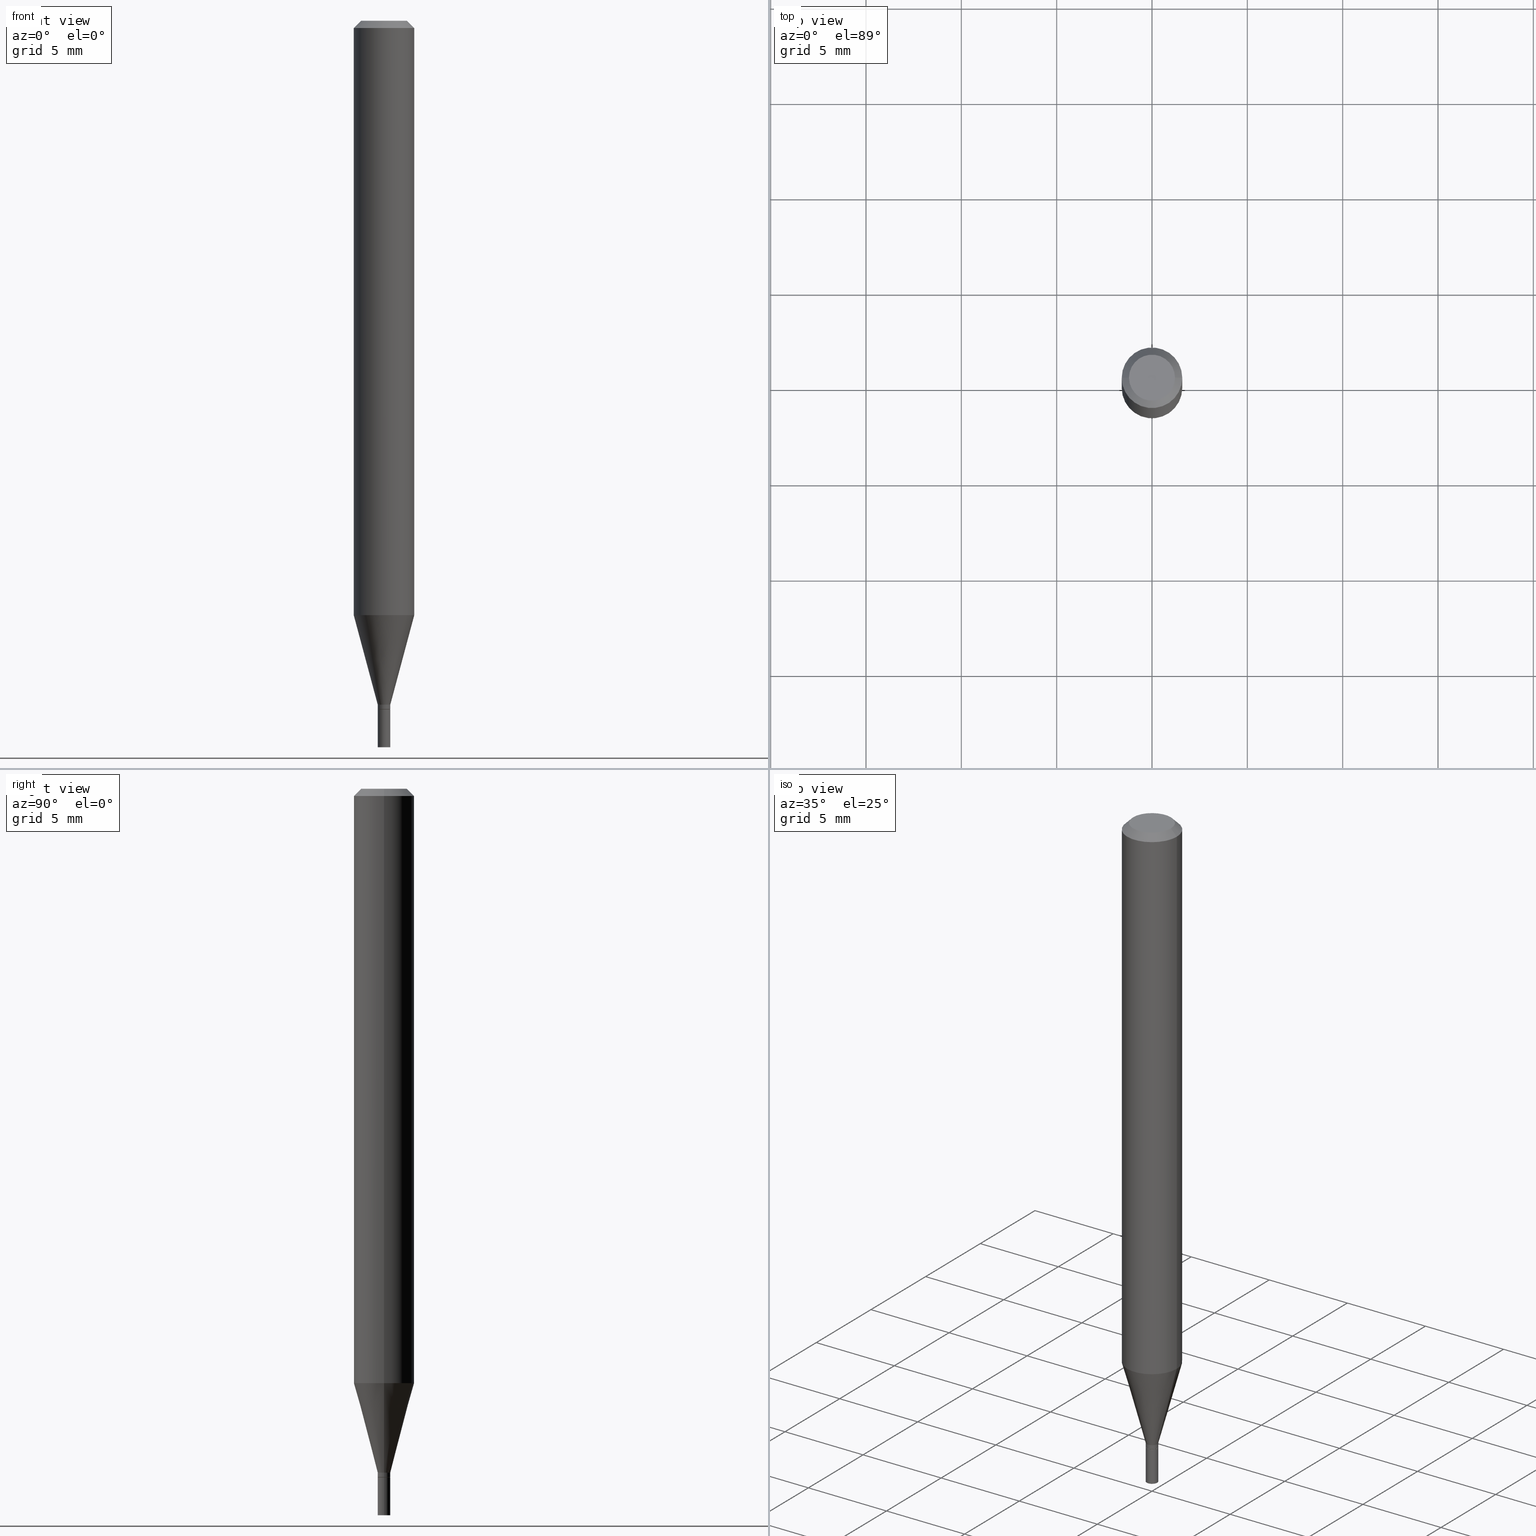
[diagram: canonical four-view strip — front | top / right | iso, engineering-drawing reading convention]
A machine part, canonical four-view strip (front | top / right | iso — engineering-drawing reading convention). The complete STEP part file that produces these views, byte-faithful:
ISO-10303-21;
HEADER;
FILE_DESCRIPTION (( 'STEP AP203' ),
    '1' );
FILE_NAME ('01177.STEP',
    '2024-03-19T23:41:36',
    ( '' ),
    ( '' ),
    'SwSTEP 2.0',
    'SolidWorks 2023',
    '' );
FILE_SCHEMA (( 'CONFIG_CONTROL_DESIGN' ));
ENDSEC;

DATA;
#1 = CARTESIAN_POINT ( 'NONE',  ( 0.06249999999999999306, -4.721402723164972337E-15, -1.227263485025340550 ) ) ;
#2 = DIRECTION ( 'NONE',  ( -2.445468806185136877E-29, 3.491481338843145188E-15, 1.000000000000000000 ) ) ;
#3 = EDGE_CURVE ( 'NONE', #13, #104, #34, .T. ) ;
#4 = DIRECTION ( 'NONE',  ( 1.000000000000000000, -6.982962677686258822E-15, 0.000000000000000000 ) ) ;
#5 = AXIS2_PLACEMENT_3D ( 'NONE', #384, #348, #433 ) ;
#6 = CC_DESIGN_APPROVAL ( #436, ( #299 ) ) ;
#7 = ADVANCED_FACE ( 'NONE', ( #202 ), #26, .T. ) ;
#8 = ORIENTED_EDGE ( 'NONE', *, *, #366, .T. ) ;
#9 = CARTESIAN_POINT ( 'NONE',  ( 3.477456642395264859E-29, -4.964886463834953365E-15, -1.421999999999999931 ) ) ;
#10 = PRODUCT_DEFINITION ( 'UNKNOWN', '', #151, #411 ) ;
#11 = ORIENTED_EDGE ( 'NONE', *, *, #21, .F. ) ;
#12 = CYLINDRICAL_SURFACE ( 'NONE', #443, 0.06250000000000000000 ) ;
#13 = VERTEX_POINT ( 'NONE', #215 ) ;
#14 = DIRECTION ( 'NONE',  ( 1.000000000000000000, -6.982962677686267499E-15, 4.876176775795935793E-29 ) ) ;
#15 = CIRCLE ( 'NONE', #42, 0.06250000000000000000 ) ;
#16 = LOCAL_TIME ( 19, 41, 36.00000000000000000, #318 ) ;
#17 = VECTOR ( 'NONE', #2, 39.37007874015748143 ) ;
#18 = ORIENTED_EDGE ( 'NONE', *, *, #444, .F. ) ;
#19 = EDGE_CURVE ( 'NONE', #13, #120, #229, .T. ) ;
#20 = CARTESIAN_POINT ( 'NONE',  ( -0.01249999999999999896, -4.876068621864941157E-15, -1.421999999999999931 ) ) ;
#21 = EDGE_CURVE ( 'NONE', #302, #167, #296, .T. ) ;
#22 = ORIENTED_EDGE ( 'NONE', *, *, #276, .F. ) ;
#23 = CC_DESIGN_PERSON_AND_ORGANIZATION_ASSIGNMENT ( #403, #162, ( #151 ) ) ;
#24 = ORIENTED_EDGE ( 'NONE', *, *, #307, .F. ) ;
#25 = ORIENTED_EDGE ( 'NONE', *, *, #67, .T. ) ;
#26 = CONICAL_SURFACE ( 'NONE', #196, 0.01299999999999992134, 0.2617993877991495189 ) ;
#27 = APPLICATION_PROTOCOL_DEFINITION ( 'international standard', 'config_control_design', 1994, #396 ) ;
#28 = DIRECTION ( 'NONE',  ( -1.000000000000000000, 6.982962677686266711E-15, 0.000000000000000000 ) ) ;
#29 = ORIENTED_EDGE ( 'NONE', *, *, #230, .F. ) ;
#30 = DIRECTION ( 'NONE',  ( -2.445468806185136597E-29, 3.491481338843145583E-15, 1.000000000000000000 ) ) ;
#31 = DIRECTION ( 'NONE',  ( -2.445468806185136597E-29, 3.491481338843145583E-15, 1.000000000000000000 ) ) ;
#32 = EDGE_LOOP ( 'NONE', ( #344, #376, #442, #400 ) ) ;
#33 = EDGE_CURVE ( 'NONE', #374, #90, #211, .T. ) ;
#34 = LINE ( 'NONE', #320, #176 ) ;
#35 = VECTOR ( 'NONE', #48, 39.37007874015748143 ) ;
#36 = CALENDAR_DATE ( 2024, 19, 3 ) ;
#37 = DIRECTION ( 'NONE',  ( -2.445468806185136597E-29, 3.491481338843145583E-15, 1.000000000000000000 ) ) ;
#38 = AXIS2_PLACEMENT_3D ( 'NONE', #232, #54, #368 ) ;
#39 = CARTESIAN_POINT ( 'NONE',  ( 0.01299999999999992134, -5.020750165256443057E-15, -1.412000000000000144 ) ) ;
#40 = CARTESIAN_POINT ( 'NONE',  ( 0.01299999999999992134, -5.053919237975453202E-15, -1.421500000000000208 ) ) ;
#41 = APPROVAL_ROLE ( '' ) ;
#42 = AXIS2_PLACEMENT_3D ( 'NONE', #169, #308, #450 ) ;
#43 = AXIS2_PLACEMENT_3D ( 'NONE', #256, #227, #333 ) ;
#44 = EDGE_CURVE ( 'NONE', #302, #346, #198, .T. ) ;
#45 = CARTESIAN_POINT ( 'NONE',  ( 0.000000000000000000, 0.000000000000000000, 0.000000000000000000 ) ) ;
#46 =( NAMED_UNIT ( * ) PLANE_ANGLE_UNIT ( ) SI_UNIT ( $, .RADIAN. ) );
#47 = DIRECTION ( 'NONE',  ( -0.7071067811865411334, 2.468850131082190402E-15, -0.7071067811865537900 ) ) ;
#48 = DIRECTION ( 'NONE',  ( -2.445468806185136877E-29, 3.491481338843145188E-15, 1.000000000000000000 ) ) ;
#49 = EDGE_LOOP ( 'NONE', ( #199, #121 ) ) ;
#50 = CARTESIAN_POINT ( 'NONE',  ( -0.01249999999999999896, -4.873419394690830745E-15, -1.421999999999999931 ) ) ;
#51 = DIRECTION ( 'NONE',  ( 1.000000000000000000, -6.982962677686258822E-15, 0.000000000000000000 ) ) ;
#52 = CYLINDRICAL_SURFACE ( 'NONE', #354, 0.06250000000000000000 ) ;
#53 = EDGE_CURVE ( 'NONE', #165, #60, #347, .T. ) ;
#54 = DIRECTION ( 'NONE',  ( -2.445468806185136597E-29, 3.491481338843145583E-15, 1.000000000000000000 ) ) ;
#55 = APPROVAL_STATUS ( 'not_yet_approved' ) ;
#56 = AXIS2_PLACEMENT_3D ( 'NONE', #9, #191, #324 ) ;
#57 = AXIS2_PLACEMENT_3D ( 'NONE', #413, #310, #51 ) ;
#58 = CLOSED_SHELL ( 'NONE', ( #221, #119, #129, #136, #7, #407, #148, #410, #345, #364, #92, #97 ) ) ;
#59 = AXIS2_PLACEMENT_3D ( 'NONE', #334, #265, #14 ) ;
#60 = VERTEX_POINT ( 'NONE', #1 ) ;
#61 = CARTESIAN_POINT ( 'NONE',  ( 3.476233907992172058E-29, -4.963140723165531861E-15, -1.421500000000000208 ) ) ;
#62 = PRODUCT_RELATED_PRODUCT_CATEGORY ( 'detail', '', ( #78 ) ) ;
#63 = ORIENTED_EDGE ( 'NONE', *, *, #377, .F. ) ;
#64 = DIRECTION ( 'NONE',  ( -2.445468806185136597E-29, 3.491481338843145583E-15, 1.000000000000000000 ) ) ;
#65 = EDGE_LOOP ( 'NONE', ( #71, #207, #89, #63 ) ) ;
#66 = CARTESIAN_POINT ( 'NONE',  ( 0.000000000000000000, 0.000000000000000000, 0.000000000000000000 ) ) ;
#67 = EDGE_CURVE ( 'NONE', #120, #68, #322, .T. ) ;
#68 = VERTEX_POINT ( 'NONE', #456 ) ;
#69 = LINE ( 'NONE', #455, #173 ) ;
#70 = DIRECTION ( 'NONE',  ( -1.000000000000000000, 6.982962677686265922E-15, -4.876176775795935793E-29 ) ) ;
#71 = ORIENTED_EDGE ( 'NONE', *, *, #426, .F. ) ;
#72 = VERTEX_POINT ( 'NONE', #39 ) ;
#73 = PERSON_AND_ORGANIZATION_ROLE ( 'creator' ) ;
#74 = CYLINDRICAL_SURFACE ( 'NONE', #83, 0.01299999999999999767 ) ;
#75 = COORDINATED_UNIVERSAL_TIME_OFFSET ( 5, 0, .BEHIND. ) ;
#76 = ADVANCED_FACE ( 'NONE', ( #284 ), #106, .F. ) ;
#77 = FACE_OUTER_BOUND ( 'NONE', #237, .T. ) ;
#78 = PRODUCT ( '01177', '01177', '', ( #427 ) ) ;
#79 = FACE_OUTER_BOUND ( 'NONE', #418, .T. ) ;
#80 = CC_DESIGN_PERSON_AND_ORGANIZATION_ASSIGNMENT ( #350, #459, ( #299 ) ) ;
#81 = AXIS2_PLACEMENT_3D ( 'NONE', #164, #126, #303 ) ;
#82 = DIRECTION ( 'NONE',  ( 0.2588190451025207950, 1.565188264969625912E-15, 0.9659258262890682012 ) ) ;
#83 = AXIS2_PLACEMENT_3D ( 'NONE', #205, #37, #103 ) ;
#84 = DIRECTION ( 'NONE',  ( 1.000000000000000000, 0.000000000000000000, 0.000000000000000000 ) ) ;
#85 = AXIS2_PLACEMENT_3D ( 'NONE', #432, #363, #257 ) ;
#86 = DIRECTION ( 'NONE',  ( -2.445468806185136597E-29, 3.491481338843145583E-15, 1.000000000000000000 ) ) ;
#87 = CARTESIAN_POINT ( 'NONE',  ( 3.477456642395264859E-29, -4.964886463834953365E-15, -1.421999999999999931 ) ) ;
#88 = CARTESIAN_POINT ( 'NONE',  ( -6.641529175093299695E-45, 9.482343474417248123E-31, 2.715851111367844914E-16 ) ) ;
#89 = ORIENTED_EDGE ( 'NONE', *, *, #21, .T. ) ;
#90 = VERTEX_POINT ( 'NONE', #40 ) ;
#91 = DIRECTION ( 'NONE',  ( -2.445468806185136877E-29, 3.491481338843145188E-15, 1.000000000000000000 ) ) ;
#92 = ADVANCED_FACE ( 'NONE', ( #183 ), #122, .T. ) ;
#93 = VECTOR ( 'NONE', #82, 39.37007874015748854 ) ;
#94 = AXIS2_PLACEMENT_3D ( 'NONE', #178, #225, #460 ) ;
#95 = ORIENTED_EDGE ( 'NONE', *, *, #53, .T. ) ;
#96 = ORIENTED_EDGE ( 'NONE', *, *, #226, .F. ) ;
#97 = ADVANCED_FACE ( 'NONE', ( #79 ), #218, .T. ) ;
#98 = FACE_OUTER_BOUND ( 'NONE', #272, .T. ) ;
#99 = ORIENTED_EDGE ( 'NONE', *, *, #110, .T. ) ;
#100 = DIRECTION ( 'NONE',  ( -2.445468806185136877E-29, 3.491481338843145188E-15, 1.000000000000000000 ) ) ;
#101 = FACE_OUTER_BOUND ( 'NONE', #233, .T. ) ;
#102 = ORIENTED_EDGE ( 'NONE', *, *, #155, .T. ) ;
#103 = DIRECTION ( 'NONE',  ( 1.000000000000000000, -6.982962677686267499E-15, 4.876176775795935793E-29 ) ) ;
#104 = VERTEX_POINT ( 'NONE', #141 ) ;
#105 = CALENDAR_DATE ( 2024, 19, 3 ) ;
#106 = PLANE ( 'NONE',  #234 ) ;
#107 = LENGTH_MEASURE_WITH_UNIT ( LENGTH_MEASURE( 0.02539999999999999897 ), #448 );
#108 = FACE_OUTER_BOUND ( 'NONE', #453, .T. ) ;
#109 = DIRECTION ( 'NONE',  ( 1.000000000000000000, -6.982962677686266711E-15, 4.876176775795935793E-29 ) ) ;
#110 = EDGE_CURVE ( 'NONE', #311, #72, #404, .T. ) ;
#111 = AXIS2_PLACEMENT_3D ( 'NONE', #408, #31, #171 ) ;
#112 = DIRECTION ( 'NONE',  ( -2.445468806185136597E-29, 3.491481338843145583E-15, 1.000000000000000000 ) ) ;
#113 = CARTESIAN_POINT ( 'NONE',  ( 9.077851480995622346E-17, 0.01299999999999503462, -1.421999999999999931 ) ) ;
#114 = LINE ( 'NONE', #398, #93 ) ;
#115 = APPLICATION_CONTEXT ( 'configuration controlled 3d designs of mechanical parts and assemblies' ) ;
#116 = ORIENTED_EDGE ( 'NONE', *, *, #285, .F. ) ;
#117 = APPROVAL_PERSON_ORGANIZATION ( #401, #464, #441 ) ;
#118 = LINE ( 'NONE', #266, #313 ) ;
#119 = ADVANCED_FACE ( 'NONE', ( #194 ), #250, .T. ) ;
#120 = VERTEX_POINT ( 'NONE', #312 ) ;
#121 = ORIENTED_EDGE ( 'NONE', *, *, #377, .T. ) ;
#122 = CONICAL_SURFACE ( 'NONE', #149, 0.01249999999999999896, 0.7853981633974718157 ) ;
#123 = CARTESIAN_POINT ( 'NONE',  ( 3.453001954333413314E-29, -4.929971650446521716E-15, -1.412000000000000144 ) ) ;
#124 = CYLINDRICAL_SURFACE ( 'NONE', #59, 0.01299999999999999767 ) ;
#125 = ORIENTED_EDGE ( 'NONE', *, *, #268, .T. ) ;
#126 = DIRECTION ( 'NONE',  ( -2.445468806185136597E-29, 3.491481338843145583E-15, 1.000000000000000000 ) ) ;
#127 = ORIENTED_EDGE ( 'NONE', *, *, #332, .T. ) ;
#128 = FACE_OUTER_BOUND ( 'NONE', #264, .T. ) ;
#129 = ADVANCED_FACE ( 'NONE', ( #282 ), #431, .T. ) ;
#130 = AXIS2_PLACEMENT_3D ( 'NONE', #290, #187, #327 ) ;
#131 = ORGANIZATION ( 'UNSPECIFIED', 'UNSPECIFIED', '' ) ;
#132 = DIRECTION ( 'NONE',  ( -0.7071067811865642261, 7.493145998870414114E-15, 0.7071067811865309194 ) ) ;
#133 = ORIENTED_EDGE ( 'NONE', *, *, #268, .F. ) ;
#134 = AXIS2_PLACEMENT_3D ( 'NONE', #425, #434, #4 ) ;
#135 = PERSON_AND_ORGANIZATION ( #449, #131 ) ;
#136 = ADVANCED_FACE ( 'NONE', ( #108 ), #12, .T. ) ;
#137 = EDGE_LOOP ( 'NONE', ( #96, #99, #380, #305 ) ) ;
#138 = CARTESIAN_POINT ( 'NONE',  ( 0.01249999999999999896, -5.052173497306032488E-15, -1.421999999999999931 ) ) ;
#139 = PERSON_AND_ORGANIZATION ( #449, #131 ) ;
#140 = DIRECTION ( 'NONE',  ( 1.000000000000000000, -6.982962677686295110E-15, 0.000000000000000000 ) ) ;
#141 = CARTESIAN_POINT ( 'NONE',  ( 0.06250000000000000000, -4.888073874380388472E-16, -0.01499999999999999944 ) ) ;
#142 = DIRECTION ( 'NONE',  ( -2.438088387897960049E-29, 3.491481338843145188E-15, 1.000000000000000000 ) ) ;
#143 = CC_DESIGN_PERSON_AND_ORGANIZATION_ASSIGNMENT ( #428, #340, ( #78 ) ) ;
#144 = CARTESIAN_POINT ( 'NONE',  ( 3.477456642395264859E-29, -4.964886463834953365E-15, -1.421999999999999931 ) ) ;
#145 = DIRECTION ( 'NONE',  ( 1.000000000000000000, -6.982962677686266711E-15, 4.876176775795935232E-29 ) ) ;
#146 = DIRECTION ( 'NONE',  ( 1.000000000000000000, -6.982962677686266711E-15, 4.876176775795935793E-29 ) ) ;
#147 = DIRECTION ( 'NONE',  ( 0.000000000000000000, 0.000000000000000000, 1.000000000000000000 ) ) ;
#148 = ADVANCED_FACE ( 'NONE', ( #77 ), #52, .T. ) ;
#149 = AXIS2_PLACEMENT_3D ( 'NONE', #144, #288, #390 ) ;
#150 = DIRECTION ( 'NONE',  ( -1.000000000000000000, 6.982962677686266711E-15, 0.000000000000000000 ) ) ;
#151 = PRODUCT_DEFINITION_FORMATION_WITH_SPECIFIED_SOURCE ( 'ANY', '', #78, .NOT_KNOWN. ) ;
#152 = LINE ( 'NONE', #389, #438 ) ;
#153 = CARTESIAN_POINT ( 'NONE',  ( 0.000000000000000000, 0.000000000000000000, 0.000000000000000000 ) ) ;
#154 = ORIENTED_EDGE ( 'NONE', *, *, #33, .F. ) ;
#155 = EDGE_CURVE ( 'NONE', #447, #90, #152, .T. ) ;
#156 = ORIENTED_EDGE ( 'NONE', *, *, #444, .T. ) ;
#157 = DIRECTION ( 'NONE',  ( 1.000000000000000000, -6.982962677686265922E-15, 4.876176775795935793E-29 ) ) ;
#158 = AXIS2_PLACEMENT_3D ( 'NONE', #343, #341, #157 ) ;
#159 = EDGE_CURVE ( 'NONE', #188, #447, #357, .T. ) ;
#160 = LOCAL_TIME ( 19, 41, 36.00000000000000000, #184 ) ;
#161 = VECTOR ( 'NONE', #47, 39.37007874015748854 ) ;
#162 = PERSON_AND_ORGANIZATION_ROLE ( 'design_supplier' ) ;
#163 = EDGE_LOOP ( 'NONE', ( #29, #190 ) ) ;
#164 = CARTESIAN_POINT ( 'NONE',  ( 3.477456642395264859E-29, -4.964886463834953365E-15, -1.421999999999999931 ) ) ;
#165 = VERTEX_POINT ( 'NONE', #429 ) ;
#166 = CLOSED_SHELL ( 'NONE', ( #452, #76, #361, #424 ) ) ;
#167 = VERTEX_POINT ( 'NONE', #360 ) ;
#168 = COORDINATED_UNIVERSAL_TIME_OFFSET ( 5, 0, .BEHIND. ) ;
#169 = CARTESIAN_POINT ( 'NONE',  ( 3.668203209277705088E-31, -5.237222008264718399E-17, -0.01499999999999999944 ) ) ;
#170 = ORIENTED_EDGE ( 'NONE', *, *, #19, .T. ) ;
#171 = DIRECTION ( 'NONE',  ( 1.000000000000000000, -6.982962677686299843E-15, 0.000000000000000000 ) ) ;
#172 = ORIENTED_EDGE ( 'NONE', *, *, #379, .T. ) ;
#173 = VECTOR ( 'NONE', #100, 39.37007874015748143 ) ;
#174 = CARTESIAN_POINT ( 'NONE',  ( -0.01299999999999999767, -5.008683680401023059E-15, -1.500000000000000222 ) ) ;
#175 = ORIENTED_EDGE ( 'NONE', *, *, #332, .F. ) ;
#176 = VECTOR ( 'NONE', #445, 39.37007874015748854 ) ;
#177 = CIRCLE ( 'NONE', #300, 0.04749999999999999362 ) ;
#178 = CARTESIAN_POINT ( 'NONE',  ( 3.001234569599529890E-29, -4.284967555809580668E-15, -1.227263485025340550 ) ) ;
#179 = DATE_AND_TIME ( #289, #160 ) ;
#180 = DATE_TIME_ROLE ( 'creation_date' ) ;
#181 = CARTESIAN_POINT ( 'NONE',  ( 3.668203209277705088E-31, -5.237222008264718399E-17, -0.01499999999999999944 ) ) ;
#182 = ADVANCED_BREP_SHAPE_REPRESENTATION ( '01177', ( #298, #293, #371 ), #240 ) ;
#183 = FACE_OUTER_BOUND ( 'NONE', #280, .T. ) ;
#184 = COORDINATED_UNIVERSAL_TIME_OFFSET ( 5, 0, .BEHIND. ) ;
#185 = CARTESIAN_POINT ( 'NONE',  ( 0.000000000000000000, 0.000000000000000000, 0.000000000000000000 ) ) ;
#186 = CARTESIAN_POINT ( 'NONE',  ( -0.01299999999999992134, -4.837601094797709398E-15, -1.412000000000000144 ) ) ;
#187 = DIRECTION ( 'NONE',  ( -2.445468806185136597E-29, 3.491481338843145583E-15, 1.000000000000000000 ) ) ;
#188 = VERTEX_POINT ( 'NONE', #50 ) ;
#189 = CYLINDRICAL_SURFACE ( 'NONE', #328, 0.01299999999999992134 ) ;
#190 = ORIENTED_EDGE ( 'NONE', *, *, #159, .F. ) ;
#191 = DIRECTION ( 'NONE',  ( -2.445468806185136597E-29, 3.491481338843145583E-15, 1.000000000000000000 ) ) ;
#192 = ORIENTED_EDGE ( 'NONE', *, *, #226, .T. ) ;
#193 = PLANE ( 'NONE',  #261 ) ;
#194 = FACE_OUTER_BOUND ( 'NONE', #269, .T. ) ;
#195 = FACE_OUTER_BOUND ( 'NONE', #137, .T. ) ;
#196 = AXIS2_PLACEMENT_3D ( 'NONE', #123, #406, #306 ) ;
#197 = APPROVAL_PERSON_ORGANIZATION ( #139, #208, #41 ) ;
#198 = CIRCLE ( 'NONE', #372, 0.01299999999999999767 ) ;
#199 = ORIENTED_EDGE ( 'NONE', *, *, #417, .T. ) ;
#200 = ORIENTED_EDGE ( 'NONE', *, *, #466, .T. ) ;
#201 = CC_DESIGN_PERSON_AND_ORGANIZATION_ASSIGNMENT ( #253, #73, ( #10 ) ) ;
#202 = FACE_OUTER_BOUND ( 'NONE', #204, .T. ) ;
#203 = DIRECTION ( 'NONE',  ( 2.445468806185136597E-29, -3.491481338843145583E-15, -1.000000000000000000 ) ) ;
#204 = EDGE_LOOP ( 'NONE', ( #457, #192, #382, #24 ) ) ;
#205 = CARTESIAN_POINT ( 'NONE',  ( 0.000000000000000000, 0.000000000000000000, 0.000000000000000000 ) ) ;
#206 = FACE_OUTER_BOUND ( 'NONE', #65, .T. ) ;
#207 = ORIENTED_EDGE ( 'NONE', *, *, #287, .T. ) ;
#208 = APPROVAL ( #422, 'UNSPECIFIED' ) ;
#209 = ORIENTED_EDGE ( 'NONE', *, *, #285, .T. ) ;
#210 = CARTESIAN_POINT ( 'NONE',  ( 0.01299999999999999767, -9.077851480992146428E-17, 6.339029808534715270E-31 ) ) ;
#211 = CIRCLE ( 'NONE', #236, 0.01299999999999992134 ) ;
#212 = VECTOR ( 'NONE', #244, 39.37007874015748143 ) ;
#213 = CARTESIAN_POINT ( 'NONE',  ( 3.668203209277704895E-29, -5.237222008264718177E-15, -1.500000000000000222 ) ) ;
#214 = DIRECTION ( 'NONE',  ( 1.000000000000000000, -6.982962677686265922E-15, 4.876176775795935793E-29 ) ) ;
#215 = CARTESIAN_POINT ( 'NONE',  ( 0.04749999999999999362, -4.035134999187573693E-16, 2.715851111367870552E-16 ) ) ;
#216 = DIRECTION ( 'NONE',  ( -2.445468806185136597E-29, 3.491481338843145583E-15, 1.000000000000000000 ) ) ;
#217 = DIRECTION ( 'NONE',  ( -2.445468806185136597E-29, 3.491481338843145583E-15, 1.000000000000000000 ) ) ;
#218 = CYLINDRICAL_SURFACE ( 'NONE', #270, 0.01299999999999992134 ) ;
#219 = CIRCLE ( 'NONE', #38, 0.06250000000000000000 ) ;
#220 = CC_DESIGN_APPROVAL ( #208, ( #151 ) ) ;
#221 = ADVANCED_FACE ( 'NONE', ( #326 ), #189, .T. ) ;
#222 = VECTOR ( 'NONE', #263, 39.37007874015748854 ) ;
#223 = CARTESIAN_POINT ( 'NONE',  ( -0.01299999999999992134, -4.339239720378613725E-15, -1.412000000000000144 ) ) ;
#224 = FACE_OUTER_BOUND ( 'NONE', #49, .T. ) ;
#225 = DIRECTION ( 'NONE',  ( -2.445468806185136597E-29, 3.491481338843145583E-15, 1.000000000000000000 ) ) ;
#226 = EDGE_CURVE ( 'NONE', #311, #165, #397, .T. ) ;
#227 = DIRECTION ( 'NONE',  ( -2.445468806185136597E-29, 3.491481338843145583E-15, 1.000000000000000000 ) ) ;
#228 = CARTESIAN_POINT ( 'NONE',  ( -6.641529175093299695E-45, 9.482343474417248123E-31, 2.715851111367844914E-16 ) ) ;
#229 = CIRCLE ( 'NONE', #385, 0.04749999999999999362 ) ;
#230 = EDGE_CURVE ( 'NONE', #447, #188, #415, .T. ) ;
#231 = ORIENTED_EDGE ( 'NONE', *, *, #417, .F. ) ;
#232 = CARTESIAN_POINT ( 'NONE',  ( 3.001234569599529890E-29, -4.284967555809580668E-15, -1.227263485025340550 ) ) ;
#233 = EDGE_LOOP ( 'NONE', ( #373, #170 ) ) ;
#234 = AXIS2_PLACEMENT_3D ( 'NONE', #463, #142, #214 ) ;
#235 = CC_DESIGN_APPROVAL ( #464, ( #10 ) ) ;
#236 = AXIS2_PLACEMENT_3D ( 'NONE', #61, #30, #353 ) ;
#237 = EDGE_LOOP ( 'NONE', ( #243, #95, #200, #133 ) ) ;
#238 = ORIENTED_EDGE ( 'NONE', *, *, #241, .T. ) ;
#239 = ORIENTED_EDGE ( 'NONE', *, *, #44, .T. ) ;
#240 =( GEOMETRIC_REPRESENTATION_CONTEXT ( 3 ) GLOBAL_UNCERTAINTY_ASSIGNED_CONTEXT ( ( #281 ) ) GLOBAL_UNIT_ASSIGNED_CONTEXT ( ( #254, #46, #331 ) ) REPRESENTATION_CONTEXT ( 'NONE', 'WORKASPACE' ) );
#241 = EDGE_CURVE ( 'NONE', #165, #68, #295, .T. ) ;
#242 = CIRCLE ( 'NONE', #43, 0.06250000000000000000 ) ;
#243 = ORIENTED_EDGE ( 'NONE', *, *, #241, .F. ) ;
#244 = DIRECTION ( 'NONE',  ( -2.445468806185136877E-29, 3.491481338843145188E-15, 1.000000000000000000 ) ) ;
#245 = CALENDAR_DATE ( 2024, 19, 3 ) ;
#246 = ORIENTED_EDGE ( 'NONE', *, *, #366, .F. ) ;
#247 = CARTESIAN_POINT ( 'NONE',  ( -0.01299999999999999767, -5.008683680401023059E-15, -1.421999999999999931 ) ) ;
#248 = DIRECTION ( 'NONE',  ( -2.445468806185136597E-29, 3.491481338843145583E-15, 1.000000000000000000 ) ) ;
#249 = DIRECTION ( 'NONE',  ( -2.445468806185136877E-29, 3.491481338843145188E-15, 1.000000000000000000 ) ) ;
#250 = CONICAL_SURFACE ( 'NONE', #294, 0.01249999999999999896, 0.7853981633974718157 ) ;
#251 = APPROVAL_ROLE ( '' ) ;
#252 = DIRECTION ( 'NONE',  ( 1.000000000000000000, -6.982962677686267499E-15, 4.852736867747366768E-29 ) ) ;
#253 = PERSON_AND_ORGANIZATION ( #449, #131 ) ;
#254 =( CONVERSION_BASED_UNIT ( 'INCH', #107 ) LENGTH_UNIT ( ) NAMED_UNIT ( #356 ) );
#255 = APPROVAL_STATUS ( 'not_yet_approved' ) ;
#256 = CARTESIAN_POINT ( 'NONE',  ( 3.668203209277705088E-31, -5.237222008264718399E-17, -0.01499999999999999944 ) ) ;
#257 = DIRECTION ( 'NONE',  ( 1.000000000000000000, -6.982962677686299843E-15, 0.000000000000000000 ) ) ;
#258 = CIRCLE ( 'NONE', #130, 0.01299999999999992134 ) ;
#259 = CC_DESIGN_DATE_AND_TIME_ASSIGNMENT ( #416, #421, ( #299 ) ) ;
#260 = LOCAL_TIME ( 19, 41, 36.00000000000000000, #75 ) ;
#261 = AXIS2_PLACEMENT_3D ( 'NONE', #402, #440, #70 ) ;
#262 = DIRECTION ( 'NONE',  ( 1.000000000000000000, -6.982962677686267499E-15, 4.852736867747366768E-29 ) ) ;
#263 = DIRECTION ( 'NONE',  ( -0.2588190451025207950, 5.211531920934546309E-15, 0.9659258262890682012 ) ) ;
#264 = EDGE_LOOP ( 'NONE', ( #239, #451, #231, #11 ) ) ;
#265 = DIRECTION ( 'NONE',  ( -2.445468806185136597E-29, 3.491481338843145583E-15, 1.000000000000000000 ) ) ;
#266 = CARTESIAN_POINT ( 'NONE',  ( -0.01299999999999992134, 9.237055564881246526E-17, -6.394615617331338392E-31 ) ) ;
#267 = CARTESIAN_POINT ( 'NONE',  ( 3.477456642395264859E-29, -4.964886463834953365E-15, -1.421999999999999931 ) ) ;
#268 = EDGE_CURVE ( 'NONE', #68, #104, #242, .T. ) ;
#269 = EDGE_LOOP ( 'NONE', ( #370, #127, #116, #339 ) ) ;
#270 = AXIS2_PLACEMENT_3D ( 'NONE', #66, #217, #317 ) ;
#271 = CALENDAR_DATE ( 2024, 19, 3 ) ;
#272 = EDGE_LOOP ( 'NONE', ( #275, #22, #25, #125 ) ) ;
#273 = DIRECTION ( 'NONE',  ( -2.445468806185136597E-29, 3.491481338843145583E-15, 1.000000000000000000 ) ) ;
#274 = CARTESIAN_POINT ( 'NONE',  ( -0.01299999999999992134, -4.870770167516720333E-15, -1.421500000000000208 ) ) ;
#275 = ORIENTED_EDGE ( 'NONE', *, *, #3, .F. ) ;
#276 = EDGE_CURVE ( 'NONE', #120, #13, #177, .T. ) ;
#277 = AXIS2_PLACEMENT_3D ( 'NONE', #375, #203, #28 ) ;
#278 = CIRCLE ( 'NONE', #134, 0.01299999999999999767 ) ;
#279 = ORIENTED_EDGE ( 'NONE', *, *, #287, .F. ) ;
#280 = EDGE_LOOP ( 'NONE', ( #175, #309, #102, #154 ) ) ;
#281 = UNCERTAINTY_MEASURE_WITH_UNIT (LENGTH_MEASURE( 1.000000000000000082E-05 ), #254, 'distance_accuracy_value', 'NONE');
#282 = FACE_OUTER_BOUND ( 'NONE', #32, .T. ) ;
#283 = SECURITY_CLASSIFICATION_LEVEL ( 'unclassified' ) ;
#284 = FACE_OUTER_BOUND ( 'NONE', #342, .T. ) ;
#285 = EDGE_CURVE ( 'NONE', #90, #374, #258, .T. ) ;
#286 = DATE_AND_TIME ( #271, #355 ) ;
#287 = EDGE_CURVE ( 'NONE', #346, #302, #278, .T. ) ;
#288 = DIRECTION ( 'NONE',  ( -2.445468806185136597E-29, 3.491481338843145583E-15, 1.000000000000000000 ) ) ;
#289 = CALENDAR_DATE ( 2024, 19, 3 ) ;
#290 = CARTESIAN_POINT ( 'NONE',  ( 3.476233907992172058E-29, -4.963140723165531861E-15, -1.421500000000000208 ) ) ;
#291 = APPLICATION_PROTOCOL_DEFINITION ( 'international standard', 'config_control_design', 1994, #115 ) ;
#292 = DIRECTION ( 'NONE',  ( 2.445468806185136597E-29, -3.491481338843145583E-15, -1.000000000000000000 ) ) ;
#293 = MANIFOLD_SOLID_BREP ( 'Body-Move/Copy2[2]', #58 ) ;
#294 = AXIS2_PLACEMENT_3D ( 'NONE', #267, #64, #140 ) ;
#295 = LINE ( 'NONE', #297, #17 ) ;
#296 = LINE ( 'NONE', #210, #35 ) ;
#297 = CARTESIAN_POINT ( 'NONE',  ( -0.06250000000000000000, 4.440892098500626162E-16, -3.074334431409316114E-30 ) ) ;
#298 = MANIFOLD_SOLID_BREP ( 'Body-Move/Copy2[1]', #166 ) ;
#299 = SECURITY_CLASSIFICATION ( '', '', #283 ) ;
#300 = AXIS2_PLACEMENT_3D ( 'NONE', #228, #352, #262 ) ;
#301 = EDGE_CURVE ( 'NONE', #72, #311, #395, .T. ) ;
#302 = VERTEX_POINT ( 'NONE', #391 ) ;
#303 = DIRECTION ( 'NONE',  ( 1.000000000000000000, -6.982962677686258822E-15, 0.000000000000000000 ) ) ;
#304 = ORIENTED_EDGE ( 'NONE', *, *, #466, .F. ) ;
#305 = ORIENTED_EDGE ( 'NONE', *, *, #53, .F. ) ;
#306 = DIRECTION ( 'NONE',  ( 1.000000000000000000, -6.982962677686299843E-15, 0.000000000000000000 ) ) ;
#307 = EDGE_CURVE ( 'NONE', #72, #60, #114, .T. ) ;
#308 = DIRECTION ( 'NONE',  ( -2.445468806185136597E-29, 3.491481338843145583E-15, 1.000000000000000000 ) ) ;
#309 = ORIENTED_EDGE ( 'NONE', *, *, #159, .T. ) ;
#310 = DIRECTION ( 'NONE',  ( -2.445468806185136597E-29, 3.491481338843145583E-15, 1.000000000000000000 ) ) ;
#311 = VERTEX_POINT ( 'NONE', #223 ) ;
#312 = CARTESIAN_POINT ( 'NONE',  ( -0.04749999999999999362, 3.578768372314215436E-16, 2.715851111367820755E-16 ) ) ;
#313 = VECTOR ( 'NONE', #91, 39.37007874015748143 ) ;
#314 = DIRECTION ( 'NONE',  ( 2.438088387897960049E-29, -3.491481338843145188E-15, -1.000000000000000000 ) ) ;
#315 = APPROVAL_DATE_TIME ( #286, #464 ) ;
#316 = LOCAL_TIME ( 19, 41, 36.00000000000000000, #462 ) ;
#317 = DIRECTION ( 'NONE',  ( 1.000000000000000000, -6.982962677686266711E-15, 4.876176775795935232E-29 ) ) ;
#318 = COORDINATED_UNIVERSAL_TIME_OFFSET ( 5, 0, .BEHIND. ) ;
#319 = CIRCLE ( 'NONE', #81, 0.01299999999999999767 ) ;
#320 = CARTESIAN_POINT ( 'NONE',  ( 0.06250000000000000000, -4.811533449433679005E-16, -0.01499999999999999944 ) ) ;
#321 = LINE ( 'NONE', #349, #212 ) ;
#322 = LINE ( 'NONE', #394, #161 ) ;
#323 = CC_DESIGN_SECURITY_CLASSIFICATION ( #299, ( #151 ) ) ;
#324 = DIRECTION ( 'NONE',  ( 1.000000000000000000, -6.982962677686295110E-15, 0.000000000000000000 ) ) ;
#325 = DIRECTION ( 'NONE',  ( 1.000000000000000000, -6.982962677686258822E-15, 0.000000000000000000 ) ) ;
#326 = FACE_OUTER_BOUND ( 'NONE', #414, .T. ) ;
#327 = DIRECTION ( 'NONE',  ( 1.000000000000000000, -6.982962677686299843E-15, 0.000000000000000000 ) ) ;
#328 = AXIS2_PLACEMENT_3D ( 'NONE', #45, #112, #145 ) ;
#329 = ORIENTED_EDGE ( 'NONE', *, *, #44, .F. ) ;
#330 = DIRECTION ( 'NONE',  ( -2.445468806185136597E-29, 3.491481338843145583E-15, 1.000000000000000000 ) ) ;
#331 =( NAMED_UNIT ( * ) SI_UNIT ( $, .STERADIAN. ) SOLID_ANGLE_UNIT ( ) );
#332 = EDGE_CURVE ( 'NONE', #188, #374, #367, .T. ) ;
#333 = DIRECTION ( 'NONE',  ( 1.000000000000000000, -6.982962677686266711E-15, 0.000000000000000000 ) ) ;
#334 = CARTESIAN_POINT ( 'NONE',  ( 0.000000000000000000, 0.000000000000000000, 0.000000000000000000 ) ) ;
#335 = AXIS2_PLACEMENT_3D ( 'NONE', #181, #292, #150 ) ;
#336 = CC_DESIGN_DATE_AND_TIME_ASSIGNMENT ( #351, #180, ( #10 ) ) ;
#337 = VECTOR ( 'NONE', #132, 39.37007874015748143 ) ;
#338 = ORIENTED_EDGE ( 'NONE', *, *, #301, .F. ) ;
#339 = ORIENTED_EDGE ( 'NONE', *, *, #155, .F. ) ;
#340 = PERSON_AND_ORGANIZATION_ROLE ( 'design_owner' ) ;
#341 = DIRECTION ( 'NONE',  ( -2.438088387897960049E-29, 3.491481338843145188E-15, 1.000000000000000000 ) ) ;
#342 = EDGE_LOOP ( 'NONE', ( #329, #279 ) ) ;
#343 = CARTESIAN_POINT ( 'NONE',  ( 3.477456642395264859E-29, -4.964886463834953365E-15, -1.421999999999999931 ) ) ;
#344 = ORIENTED_EDGE ( 'NONE', *, *, #19, .F. ) ;
#345 = ADVANCED_FACE ( 'NONE', ( #101 ), #193, .F. ) ;
#346 = VERTEX_POINT ( 'NONE', #174 ) ;
#347 = CIRCLE ( 'NONE', #94, 0.06250000000000000000 ) ;
#348 = DIRECTION ( 'NONE',  ( -2.445468806185136597E-29, 3.491481338843145583E-15, 1.000000000000000000 ) ) ;
#349 = CARTESIAN_POINT ( 'NONE',  ( 0.06250000000000000000, -4.364351673553916694E-16, 3.047610484872459871E-30 ) ) ;
#350 = PERSON_AND_ORGANIZATION ( #449, #131 ) ;
#351 = DATE_AND_TIME ( #36, #260 ) ;
#352 = DIRECTION ( 'NONE',  ( -2.445468806185136597E-29, 3.491481338843145583E-15, 1.000000000000000000 ) ) ;
#353 = DIRECTION ( 'NONE',  ( 1.000000000000000000, -6.982962677686299843E-15, 0.000000000000000000 ) ) ;
#354 = AXIS2_PLACEMENT_3D ( 'NONE', #185, #216, #146 ) ;
#355 = LOCAL_TIME ( 19, 41, 36.00000000000000000, #168 ) ;
#356 = DIMENSIONAL_EXPONENTS ( 1.000000000000000000, 0.000000000000000000, 0.000000000000000000, 0.000000000000000000, 0.000000000000000000, 0.000000000000000000, 0.000000000000000000 ) ;
#357 = CIRCLE ( 'NONE', #454, 0.01249999999999999896 ) ;
#358 = DIRECTION ( 'NONE',  ( 0.7071067811865642261, -2.468850131082431399E-15, 0.7071067811865309194 ) ) ;
#359 = PLANE ( 'NONE',  #437 ) ;
#360 = CARTESIAN_POINT ( 'NONE',  ( 0.01299999999999999767, -5.055664978644874706E-15, -1.421999999999999931 ) ) ;
#361 = ADVANCED_FACE ( 'NONE', ( #206 ), #124, .T. ) ;
#362 = ORIENTED_EDGE ( 'NONE', *, *, #33, .T. ) ;
#363 = DIRECTION ( 'NONE',  ( -2.445468806185136597E-29, 3.491481338843145583E-15, 1.000000000000000000 ) ) ;
#364 = ADVANCED_FACE ( 'NONE', ( #446 ), #378, .F. ) ;
#365 = CARTESIAN_POINT ( 'NONE',  ( 0.000000000000000000, 0.000000000000000000, 0.000000000000000000 ) ) ;
#366 = EDGE_CURVE ( 'NONE', #374, #311, #118, .T. ) ;
#367 = LINE ( 'NONE', #20, #337 ) ;
#368 = DIRECTION ( 'NONE',  ( 1.000000000000000000, -6.982962677686270655E-15, 0.000000000000000000 ) ) ;
#369 = CONICAL_SURFACE ( 'NONE', #277, 0.06250000000000000000, 0.7853981633974393972 ) ;
#370 = ORIENTED_EDGE ( 'NONE', *, *, #230, .T. ) ;
#371 = AXIS2_PLACEMENT_3D ( 'NONE', #153, #147, #84 ) ;
#372 = AXIS2_PLACEMENT_3D ( 'NONE', #213, #248, #325 ) ;
#373 = ORIENTED_EDGE ( 'NONE', *, *, #276, .T. ) ;
#374 = VERTEX_POINT ( 'NONE', #274 ) ;
#375 = CARTESIAN_POINT ( 'NONE',  ( 3.668203209277705088E-31, -5.237222008264718399E-17, -0.01499999999999999944 ) ) ;
#376 = ORIENTED_EDGE ( 'NONE', *, *, #3, .T. ) ;
#377 = EDGE_CURVE ( 'NONE', #439, #167, #319, .T. ) ;
#378 = PLANE ( 'NONE',  #158 ) ;
#379 = EDGE_CURVE ( 'NONE', #60, #165, #219, .T. ) ;
#380 = ORIENTED_EDGE ( 'NONE', *, *, #307, .T. ) ;
#381 = DATE_AND_TIME ( #245, #16 ) ;
#382 = ORIENTED_EDGE ( 'NONE', *, *, #379, .F. ) ;
#383 = LINE ( 'NONE', #419, #393 ) ;
#384 = CARTESIAN_POINT ( 'NONE',  ( 3.453001954333413314E-29, -4.929971650446521716E-15, -1.412000000000000144 ) ) ;
#385 = AXIS2_PLACEMENT_3D ( 'NONE', #88, #273, #252 ) ;
#386 = PERSON_AND_ORGANIZATION_ROLE ( 'creator' ) ;
#387 = APPROVAL_DATE_TIME ( #381, #436 ) ;
#388 = CC_DESIGN_PERSON_AND_ORGANIZATION_ASSIGNMENT ( #420, #386, ( #151 ) ) ;
#389 = CARTESIAN_POINT ( 'NONE',  ( 0.01249999999999999896, -5.052173497306032488E-15, -1.421999999999999931 ) ) ;
#390 = DIRECTION ( 'NONE',  ( 1.000000000000000000, -6.982962677686295110E-15, 0.000000000000000000 ) ) ;
#391 = CARTESIAN_POINT ( 'NONE',  ( 0.01299999999999999767, -5.328000523074639518E-15, -1.500000000000000222 ) ) ;
#392 = CONICAL_SURFACE ( 'NONE', #111, 0.01299999999999992134, 0.2617993877991495189 ) ;
#393 = VECTOR ( 'NONE', #249, 39.37007874015748143 ) ;
#394 = CARTESIAN_POINT ( 'NONE',  ( -0.06250000000000000000, 3.840629472727444916E-16, -0.01499999999999999944 ) ) ;
#395 = CIRCLE ( 'NONE', #85, 0.01299999999999992134 ) ;
#396 = APPLICATION_CONTEXT ( 'configuration controlled 3d designs of mechanical parts and assemblies' ) ;
#397 = LINE ( 'NONE', #186, #222 ) ;
#398 = CARTESIAN_POINT ( 'NONE',  ( 0.01299999999999992134, -5.020750165256443057E-15, -1.412000000000000144 ) ) ;
#399 = PRODUCT_DEFINITION_SHAPE ( 'NONE', 'NONE',  #10 ) ;
#400 = ORIENTED_EDGE ( 'NONE', *, *, #67, .F. ) ;
#401 = PERSON_AND_ORGANIZATION ( #449, #131 ) ;
#402 = CARTESIAN_POINT ( 'NONE',  ( 3.316907271900976096E-16, 0.04749999999999999362, -3.005280802665715689E-17 ) ) ;
#403 = PERSON_AND_ORGANIZATION ( #449, #131 ) ;
#404 = CIRCLE ( 'NONE', #5, 0.01299999999999992134 ) ;
#405 = CIRCLE ( 'NONE', #57, 0.01299999999999999767 ) ;
#406 = DIRECTION ( 'NONE',  ( -2.445468806185136597E-29, 3.491481338843145583E-15, 1.000000000000000000 ) ) ;
#407 = ADVANCED_FACE ( 'NONE', ( #195 ), #392, .T. ) ;
#408 = CARTESIAN_POINT ( 'NONE',  ( 3.453001954333413314E-29, -4.929971650446521716E-15, -1.412000000000000144 ) ) ;
#409 = ORIENTED_EDGE ( 'NONE', *, *, #412, .F. ) ;
#410 = ADVANCED_FACE ( 'NONE', ( #98 ), #369, .T. ) ;
#411 = DESIGN_CONTEXT ( 'detailed design', #396, 'design' ) ;
#412 = EDGE_CURVE ( 'NONE', #104, #68, #15, .T. ) ;
#413 = CARTESIAN_POINT ( 'NONE',  ( 3.477456642395264859E-29, -4.964886463834953365E-15, -1.421999999999999931 ) ) ;
#414 = EDGE_LOOP ( 'NONE', ( #209, #8, #338, #18 ) ) ;
#415 = CIRCLE ( 'NONE', #56, 0.01249999999999999896 ) ;
#416 = DATE_AND_TIME ( #105, #316 ) ;
#417 = EDGE_CURVE ( 'NONE', #167, #439, #405, .T. ) ;
#418 = EDGE_LOOP ( 'NONE', ( #246, #362, #156, #435 ) ) ;
#419 = CARTESIAN_POINT ( 'NONE',  ( 0.01299999999999992134, -9.077851480992092194E-17, 6.339029808534677610E-31 ) ) ;
#420 = PERSON_AND_ORGANIZATION ( #449, #131 ) ;
#421 = DATE_TIME_ROLE ( 'classification_date' ) ;
#422 = APPROVAL_STATUS ( 'not_yet_approved' ) ;
#423 = SHAPE_DEFINITION_REPRESENTATION ( #399, #182 ) ;
#424 = ADVANCED_FACE ( 'NONE', ( #224 ), #359, .F. ) ;
#425 = CARTESIAN_POINT ( 'NONE',  ( 3.668203209277704895E-29, -5.237222008264718177E-15, -1.500000000000000222 ) ) ;
#426 = EDGE_CURVE ( 'NONE', #346, #439, #69, .T. ) ;
#427 = MECHANICAL_CONTEXT ( 'NONE', #115, 'mechanical' ) ;
#428 = PERSON_AND_ORGANIZATION ( #449, #131 ) ;
#429 = CARTESIAN_POINT ( 'NONE',  ( -0.06249999999999999306, -3.840878345959517263E-15, -1.227263485025340550 ) ) ;
#430 = APPROVAL_PERSON_ORGANIZATION ( #135, #436, #251 ) ;
#431 = CONICAL_SURFACE ( 'NONE', #335, 0.06250000000000000000, 0.7853981633974393972 ) ;
#432 = CARTESIAN_POINT ( 'NONE',  ( 3.453001954333413314E-29, -4.929971650446521716E-15, -1.412000000000000144 ) ) ;
#433 = DIRECTION ( 'NONE',  ( 1.000000000000000000, -6.982962677686299843E-15, 0.000000000000000000 ) ) ;
#434 = DIRECTION ( 'NONE',  ( -2.445468806185136597E-29, 3.491481338843145583E-15, 1.000000000000000000 ) ) ;
#435 = ORIENTED_EDGE ( 'NONE', *, *, #110, .F. ) ;
#436 = APPROVAL ( #255, 'UNSPECIFIED' ) ;
#437 = AXIS2_PLACEMENT_3D ( 'NONE', #113, #314, #458 ) ;
#438 = VECTOR ( 'NONE', #358, 39.37007874015748143 ) ;
#439 = VERTEX_POINT ( 'NONE', #247 ) ;
#440 = DIRECTION ( 'NONE',  ( 2.438088387897960049E-29, -3.491481338843145188E-15, -1.000000000000000000 ) ) ;
#441 = APPROVAL_ROLE ( '' ) ;
#442 = ORIENTED_EDGE ( 'NONE', *, *, #412, .T. ) ;
#443 = AXIS2_PLACEMENT_3D ( 'NONE', #365, #330, #109 ) ;
#444 = EDGE_CURVE ( 'NONE', #90, #72, #383, .T. ) ;
#445 = DIRECTION ( 'NONE',  ( 0.7071067811865411334, -7.319954787623233957E-15, -0.7071067811865537900 ) ) ;
#446 = FACE_OUTER_BOUND ( 'NONE', #163, .T. ) ;
#447 = VERTEX_POINT ( 'NONE', #138 ) ;
#448 =( LENGTH_UNIT ( ) NAMED_UNIT ( * ) SI_UNIT ( $, .METRE. ) );
#449 = PERSON ( 'UNSPECIFIED', 'UNSPECIFIED', 'UNSPECIFIED', ('UNSPECIFIED'), ('UNSPECIFIED'), ('UNSPECIFIED') ) ;
#450 = DIRECTION ( 'NONE',  ( 1.000000000000000000, -6.982962677686266711E-15, 0.000000000000000000 ) ) ;
#451 = ORIENTED_EDGE ( 'NONE', *, *, #426, .T. ) ;
#452 = ADVANCED_FACE ( 'NONE', ( #128 ), #74, .T. ) ;
#453 = EDGE_LOOP ( 'NONE', ( #172, #238, #409, #304 ) ) ;
#454 = AXIS2_PLACEMENT_3D ( 'NONE', #87, #86, #465 ) ;
#455 = CARTESIAN_POINT ( 'NONE',  ( -0.01299999999999999767, 9.237055564881300760E-17, -6.394615617331376928E-31 ) ) ;
#456 = CARTESIAN_POINT ( 'NONE',  ( -0.06250000000000000000, -1.724580678096051257E-15, -0.01499999999999999944 ) ) ;
#457 = ORIENTED_EDGE ( 'NONE', *, *, #301, .T. ) ;
#458 = DIRECTION ( 'NONE',  ( -1.000000000000000000, 6.982962677686265922E-15, -4.876176775795935793E-29 ) ) ;
#459 = PERSON_AND_ORGANIZATION_ROLE ( 'classification_officer' ) ;
#460 = DIRECTION ( 'NONE',  ( 1.000000000000000000, -6.982962677686270655E-15, 0.000000000000000000 ) ) ;
#461 = APPROVAL_DATE_TIME ( #179, #208 ) ;
#462 = COORDINATED_UNIVERSAL_TIME_OFFSET ( 5, 0, .BEHIND. ) ;
#463 = CARTESIAN_POINT ( 'NONE',  ( 3.584916967085606921E-29, -5.356492647442320375E-15, -1.500000000000000222 ) ) ;
#464 = APPROVAL ( #55, 'UNSPECIFIED' ) ;
#465 = DIRECTION ( 'NONE',  ( 1.000000000000000000, -6.982962677686295110E-15, 0.000000000000000000 ) ) ;
#466 = EDGE_CURVE ( 'NONE', #60, #104, #321, .T. ) ;
ENDSEC;
END-ISO-10303-21;
